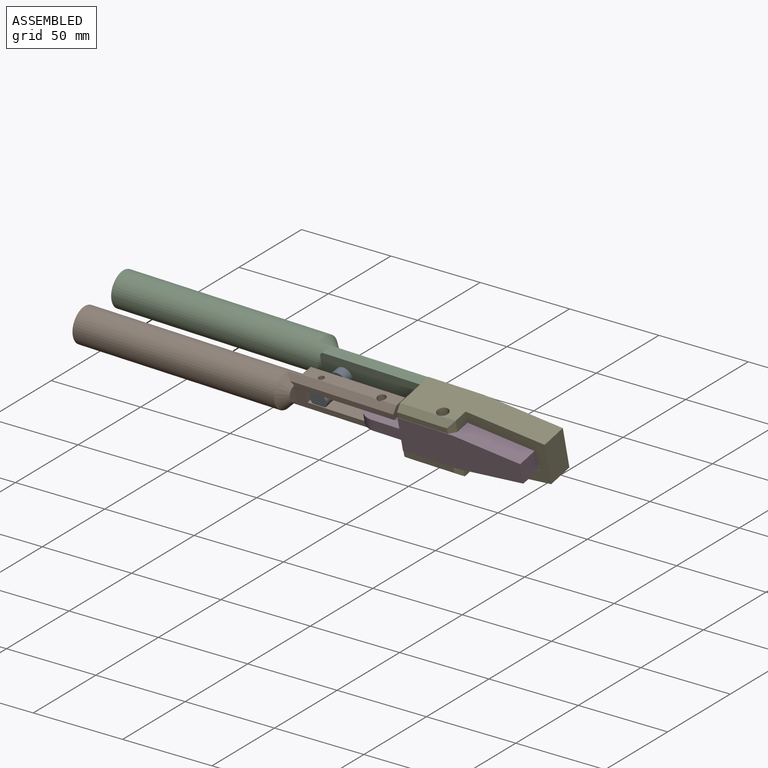
[diagram: assembled view]
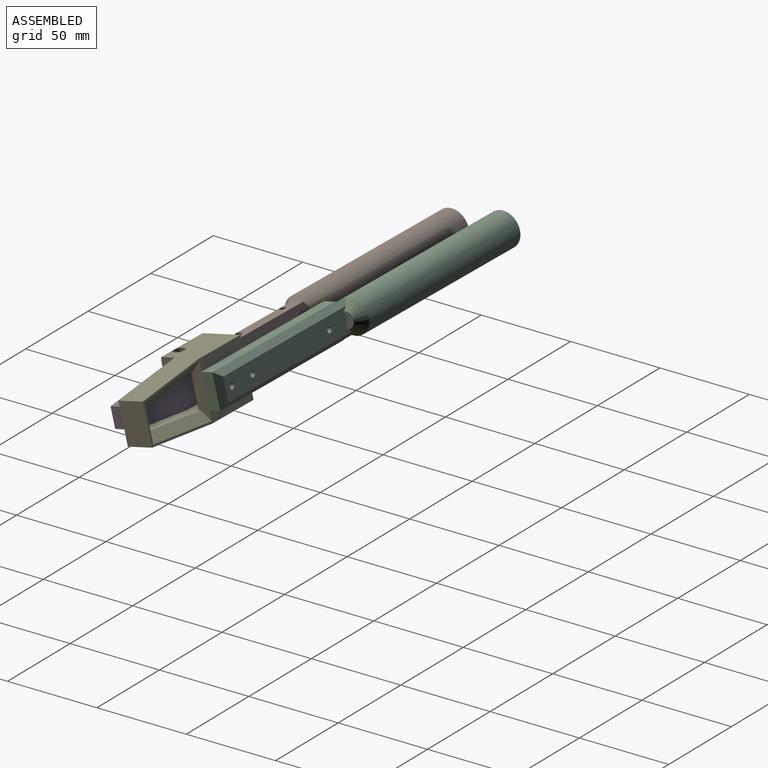
[diagram: assembled view, second angle]
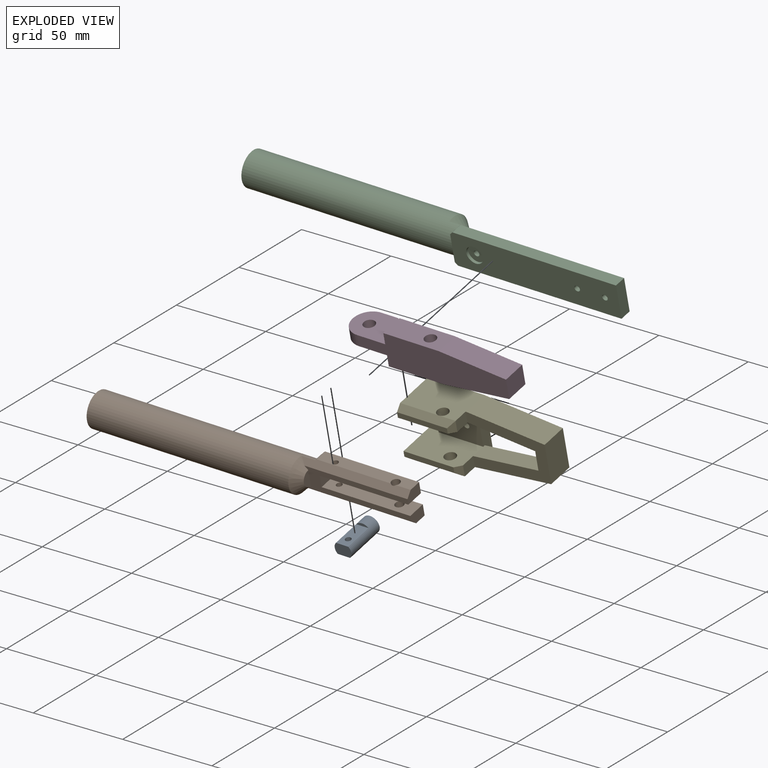
[diagram: exploded view]
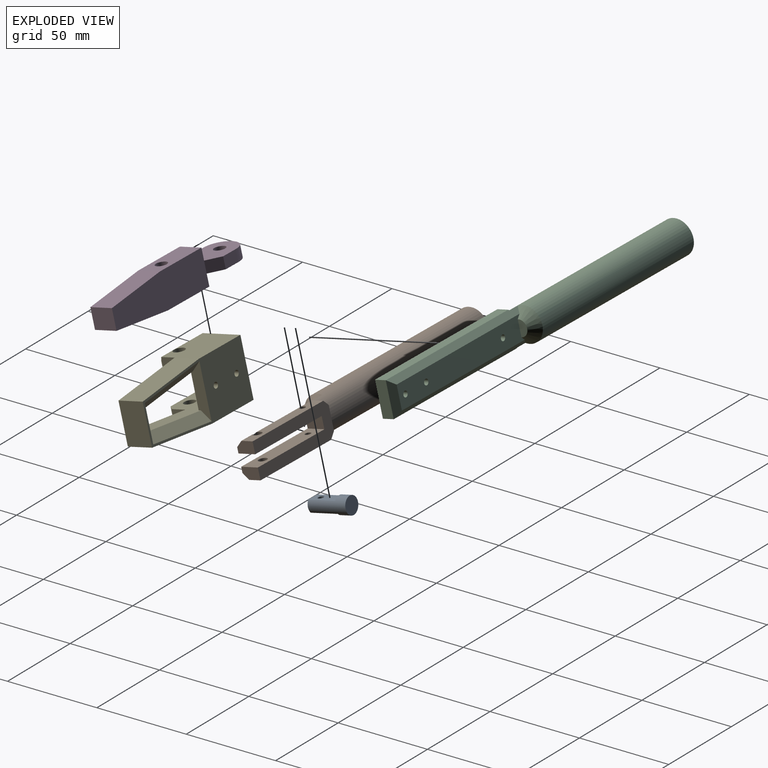
[diagram: exploded view, second angle]
ASSEMBLY  parts=5 mates=5
PART A: 8 faces, bbox 22.2x9.5x9.5 mm
  f0: plane 7.1x1.59mm, normal (1,0,0), area 7.8mm2, adj f1,f5
  f1: cylinder r=4.76mm len=22.23mm, axis (-1,0,0), area 410.7mm2, adj f0,f2,f3,f4,f5,f6
  f2: plane 7.1x1.59mm, normal (1,0,0), area 7.8mm2, adj f1,f4
  f3: plane 9.53x9.53mm, normal (-1,0,0), area 71.3mm2, adj f1
  f4: plane 15.88x7.1mm, normal (0,1,0), area 104.8mm2, adj f1,f2,f6,f7
  f5: plane 15.88x7.1mm, normal (0,-1,0), area 104.8mm2, adj f0,f1,f6,f7
  f6: plane 9.53x6.35mm, normal (1,0,0), area 55.6mm2, adj f1,f4,f5
  f7: cylinder r=1.59mm len=6.35mm, axis (0,1,0), area 63.3mm2, adj f4,f5
PART B: 22 faces, bbox 19.1x19.4x177.8 mm
  f0: plane 53.98x6.68mm, normal (-1,0,0), area 335.5mm2, adj f8,f10,f15,f17,f18,f21
  f1: plane 9.85x6.48mm, normal (0,0,1), area 63.8mm2, adj f6,f8,f9,f11
  f2: cylinder r=9.53mm len=123.42mm, axis (0,0,-1), area 7056.5mm2, adj f4,f5,f13,f14,f15,f16,f17
  f3: plane 8.89x4.45mm, normal (0,0,1), area 31mm2, adj f6,f13
  f4: plane 19.05x19.05mm, normal (0,0,-1), area 285mm2, adj f2
  f5: plane 12.7x2.75mm, normal (0,0,-1), area 13.8mm2, adj f2,f8,f16,f17
  f6: plane 59.06x12.7mm, normal (0,-1,0), area 400.4mm2, adj f1,f3,f9,f10,f11,f12,f13,f14
  f7: plane 53.98x6.68mm, normal (1,0,0), area 335.5mm2, adj f8,f12,f14,f16,f19,f20
  f8: plane 57.15x19.05mm, normal (0,1,0), area 749.6mm2, adj f0,f1,f5,f7,f9,f10,f11,f12
  f9: plane 50.8x9.85mm, normal (1,0,0), area 474.7mm2, adj f1,f6,f8,f10,f18,f21
  f10: plane 9.85x6.29mm, normal (0,0,1), area 56.9mm2, adj f0,f6,f8,f9,f15
  f11: plane 50.8x9.85mm, normal (-1,0,0), area 474.7mm2, adj f1,f6,f8,f12,f19,f20
  f12: plane 9.85x6.29mm, normal (0,0,1), area 56.9mm2, adj f6,f7,f8,f11,f14
  f13: cone r=4.45mm half-angle=45deg, axis (0,0,-1), area 170.6mm2, adj f2,f3,f6,f14,f15
  f14: plane 62.23x3.18mm, normal (0.71,-0.71,0), area 267mm2, adj f2,f6,f7,f12,f13,f16,f19
  f15: plane 62.23x3.18mm, normal (-0.71,-0.71,0), area 267mm2, adj f0,f2,f6,f10,f13,f17,f18
  f16: plane 7.09x3.18mm, normal (0.71,0,-0.71), area 21.5mm2, adj f2,f5,f7,f8,f14
  f17: plane 7.09x3.18mm, normal (-0.71,0,-0.71), area 21.5mm2, adj f0,f2,f5,f8,f15
  f18: cylinder r=2.38mm len=6.29mm, axis (-1,0,0), area 93.1mm2, adj f0,f9,f15
  f19: cylinder r=2.38mm len=6.29mm, axis (-1,0,0), area 93.1mm2, adj f7,f11,f14
  f20: cylinder r=1.59mm len=6.29mm, axis (-1,0,0), area 62.7mm2, adj f7,f11
  f21: cylinder r=1.59mm len=6.29mm, axis (-1,0,0), area 62.7mm2, adj f0,f9
PART C: 21 faces, bbox 215.9x19.1x19.1 mm
  f0: plane 7.94x4.26mm, normal (1,0,0), area 10mm2, adj f4,f10,f15
  f1: plane 93.66x6.35mm, normal (0,0,1), area 594.8mm2, adj f4,f6,f12,f15
  f2: plane 93.98x12.7mm, normal (0,-1,0), area 1149.2mm2, adj f7,f8,f9,f12,f13,f14,f17,f18
  f3: plane 93.66x6.35mm, normal (0,0,-1), area 594.8mm2, adj f4,f6,f13,f16
  f4: plane 95.25x19.05mm, normal (0,1,0), area 1724.9mm2, adj f0,f1,f3,f5,f6,f7,f8,f15
  f5: plane 7.94x4.26mm, normal (1,0,0), area 10mm2, adj f4,f10,f16
  f6: plane 19.05x6.35mm, normal (-1,0,0), area 121mm2, adj f1,f3,f4,f14
  f7: cylinder r=1.59mm len=9.53mm, axis (0,-1,0), area 95mm2, adj f2,f4
  f8: cylinder r=1.59mm len=9.53mm, axis (0,-1,0), area 95mm2, adj f2,f4
  f9: plane 8.89x4.45mm, normal (-1,0,0), area 31mm2, adj f2,f17
  f10: cylinder r=9.53mm len=121.83mm, axis (-1,0,0), area 7043.7mm2, adj f0,f5,f11,f12,f13,f15,f16,f17
  f11: plane 19.05x19.05mm, normal (1,0,0), area 285mm2, adj f10
  f12: plane 100.33x3.18mm, normal (0,-0.71,0.71), area 433.2mm2, adj f1,f2,f10,f14,f15,f17
  f13: plane 100.33x3.18mm, normal (0,-0.71,-0.71), area 433.2mm2, adj f2,f3,f10,f14,f16,f17
  f14: plane 19.05x3.18mm, normal (-0.71,-0.71,0), area 71.3mm2, adj f2,f6,f12,f13
  f15: plane 6.76x1.59mm, normal (0.71,0,0.71), area 12.7mm2, adj f0,f1,f4,f10,f12
  f16: plane 6.76x1.59mm, normal (0.71,0,-0.71), area 12.7mm2, adj f3,f4,f5,f10,f13
  f17: cone r=9.53mm half-angle=45deg, axis (1,0,0), area 170.6mm2, adj f2,f9,f10,f12,f13
  f18: cylinder r=1.59mm len=7.94mm, axis (0,1,0), area 79.2mm2, adj f2,f19
  f19: plane 9.53x9.53mm, normal (0,1,0), area 63.3mm2, adj f18,f20
  f20: cylinder r=4.76mm len=9.53mm, axis (0,1,0), area 47.5mm2, adj f4,f19
PART D: 16 faces, bbox 95.3x19.1x19.1 mm
  f0: plane 25.61x19.05mm, normal (0,-1,0), area 397mm2, adj f1,f10,f11,f12,f13,f14
  f1: plane 12.7x6.35mm, normal (-1,0,0), area 80.6mm2, adj f0,f2,f9,f10
  f2: plane 31.75x12.7mm, normal (0,-1,0), area 371.6mm2, adj f1,f3,f9,f10,f15
  f3: plane 37.89x12.7mm, normal (0.1,-0.99,0), area 483.9mm2, adj f2,f4,f9,f10
  f4: plane 12.7x11.11mm, normal (1,0,0), area 141.1mm2, adj f3,f5,f9,f10
  f5: plane 37.89x12.7mm, normal (0.1,0.99,0), area 483.9mm2, adj f4,f6,f9,f10
  f6: plane 31.75x12.7mm, normal (0,1,0), area 371.6mm2, adj f5,f7,f9,f10,f15
  f7: plane 12.7x6.35mm, normal (-1,0,0), area 80.6mm2, adj f6,f8,f9,f10
  f8: plane 25.61x19.05mm, normal (0,1,0), area 397mm2, adj f7,f10,f11,f12,f13,f14
  f9: plane 69.64x19.05mm, normal (0,0,1), area 1176.3mm2, adj f1,f2,f3,f4,f5,f6,f7,f12
  f10: plane 85.73x19.05mm, normal (0,0,-1), area 1278.4mm2, adj f0,f1,f2,f3,f4,f5,f6,f7
  f11: plane 9.73x6.35mm, normal (0,0,1), area 61.8mm2, adj f0,f8,f12,f13
  f12: plane 6.35x6.35mm, normal (0.71,0,0.71), area 57mm2, adj f0,f8,f9,f11
  f13: cylinder r=9.53mm len=19.05mm, axis (0,-1,0), area 190mm2, adj f0,f8,f10,f11
  f14: cylinder r=3.17mm len=6.35mm, axis (0,-1,0), area 126.7mm2, adj f0,f8
  f15: cylinder r=3.17mm len=19.05mm, axis (0,1,0), area 380mm2, adj f2,f6
PART E: 32 faces, bbox 76.2x31.8x25.4 mm
  f0: plane 25.4x6.29mm, normal (-1,0,0), area 154.6mm2, adj f9,f13,f15,f16,f29
  f1: plane 25.4x19.18mm, normal (0,0,1), area 471.3mm2, adj f10,f15,f18,f23,f26,f27
  f2: plane 44.45x14.29mm, normal (0.1,-0.99,0), area 638.5mm2, adj f3,f8,f9,f12
  f3: plane 22.5x14.29mm, normal (1,0,0), area 321.5mm2, adj f2,f4,f8,f9
  f4: plane 44.45x14.29mm, normal (0.1,0.99,0), area 638.5mm2, adj f3,f8,f9,f13
  f5: plane 38.1x9.21mm, normal (-0.11,-0.99,0), area 352.8mm2, adj f6,f8,f10,f15,f20
  f6: plane 11.13x9.21mm, normal (-1,0,0), area 102.4mm2, adj f5,f7,f8,f22
  f7: plane 38.1x9.21mm, normal (-0.11,0.99,0), area 352.8mm2, adj f6,f8,f10,f18,f21
  f8: plane 44.45x31.75mm, normal (0,0,1), area 628.5mm2, adj f2,f3,f4,f5,f6,f7,f14,f17
  f9: plane 76.2x31.75mm, normal (0,0,-1), area 1125.8mm2, adj f0,f2,f3,f4,f10,f11,f12,f13
  f10: plane 29.39x6.35mm, normal (1,0,0), area 147.7mm2, adj f1,f5,f7,f9,f20,f21
  f11: plane 25.4x6.29mm, normal (-1,0,0), area 154.6mm2, adj f9,f12,f18,f19,f31
  f12: plane 31.75x22.23mm, normal (0,-1,0), area 674mm2, adj f2,f9,f11,f17,f24,f31
  f13: plane 31.75x22.23mm, normal (0,1,0), area 674mm2, adj f0,f4,f9,f14,f25,f29
  f14: plane 7.94x6.29mm, normal (1,0,0), area 49.9mm2, adj f8,f13,f15,f28
  f15: plane 31.75x25.4mm, normal (0,-1,0), area 588.3mm2, adj f0,f1,f5,f14,f16,f23,f25,f28
  f16: plane 28.58x3.11mm, normal (0,0,1), area 88.9mm2, adj f0,f15,f28,f29
  f17: plane 7.94x6.29mm, normal (1,0,0), area 49.9mm2, adj f8,f12,f18,f30
  f18: plane 31.75x25.4mm, normal (0,1,0), area 588.3mm2, adj f1,f7,f11,f17,f19,f23,f24,f30
  f19: plane 28.58x3.11mm, normal (0,0,1), area 88.9mm2, adj f11,f18,f30,f31
  f20: plane 43.18x9.13mm, normal (-0.07,-0.7,-0.71), area 293.6mm2, adj f5,f9,f10,f22
  f21: plane 43.18x9.13mm, normal (-0.07,0.7,-0.71), area 293.6mm2, adj f7,f9,f10,f22
  f22: plane 20.27x5.08mm, normal (-0.71,0,-0.71), area 112.8mm2, adj f6,f9,f20,f21
  f23: plane 19.18x6.35mm, normal (-0.71,0,0.71), area 172.2mm2, adj f1,f9,f15,f18
  f24: cylinder r=3.17mm len=6.35mm, axis (0,-1,0), area 125.4mm2, adj f12,f18
  f25: cylinder r=3.17mm len=6.35mm, axis (0,-1,0), area 125.4mm2, adj f13,f15
  f26: cylinder r=1.59mm len=6.35mm, axis (0,0,-1), area 63.3mm2, adj f1,f9
  f27: cylinder r=1.59mm len=6.35mm, axis (0,0,-1), area 63.3mm2, adj f1,f9
  f28: plane 6.29x3.18mm, normal (0.71,0,0.71), area 21.1mm2, adj f14,f15,f16,f29
  f29: plane 31.75x3.18mm, normal (0,0.71,0.71), area 135.4mm2, adj f0,f13,f16,f28
  f30: plane 6.29x3.18mm, normal (0.71,0,0.71), area 21.1mm2, adj f17,f18,f19,f31
  f31: plane 31.75x3.18mm, normal (0,-0.71,0.71), area 135.4mm2, adj f11,f12,f19,f30
PLACE A rot(axis=(0.61,-0.49,-0.63),129deg) t=(-136.51,-28.73,-36.82)mm
PLACE B rot(axis=(0.13,0.99,0.1),91deg) t=(-308.12,-26.87,31.98)mm
PLACE C rot(axis=(0,-0.12,0.99),178.2deg) t=(-93.97,-81.01,16.11)mm fixed
PLACE D rot(axis=(-1,0.02,-0.02),76.6deg) t=(-129.41,-61.42,-17.45)mm
PLACE E rot(axis=(1,-0.01,-0.02),103.5deg) t=(-124.55,-34.52,-21.09)mm
MATE revolute B.f18 <-> D.f13  axis (0,-0.23,0.97) through (-141.34,-53.91,-6.14)mm
MATE fastened E.f26 <-> C.f8  axis (0.03,0.97,0.23) through (-116.62,-38.47,-5.71)mm
MATE revolute B.f20 <-> A.f7  axis (0,-0.23,0.97) through (-175.84,-52.78,-5.87)mm
MATE fastened C.f18 <-> A.f1  axis (-0.03,-0.97,-0.23) through (-175.28,-35.07,-4.89)mm
MATE fastened E.f27 <-> C.f7  axis (0.03,0.97,0.23) through (-100.75,-38.97,-5.83)mm
